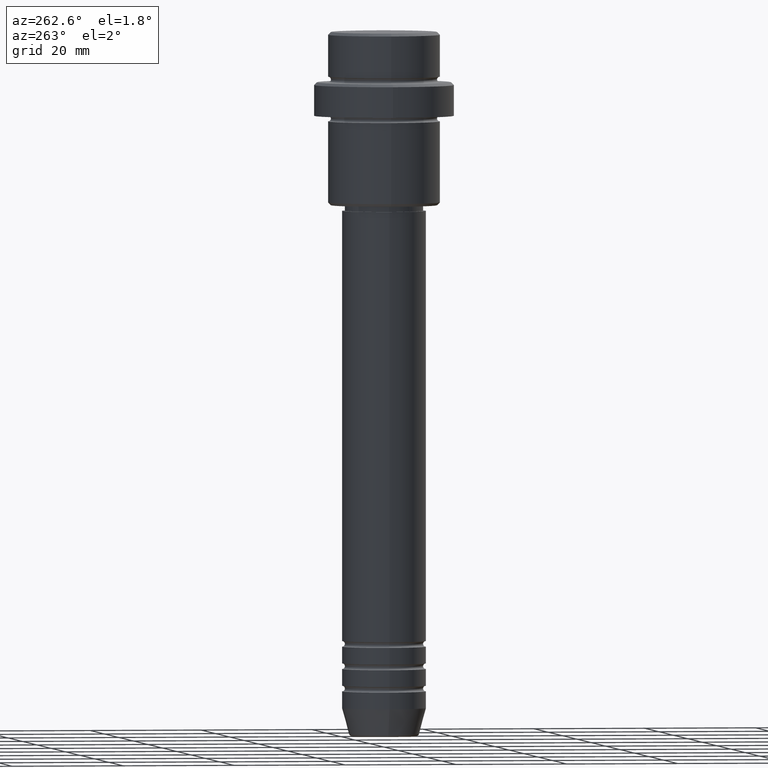
[diagram: clean part render]
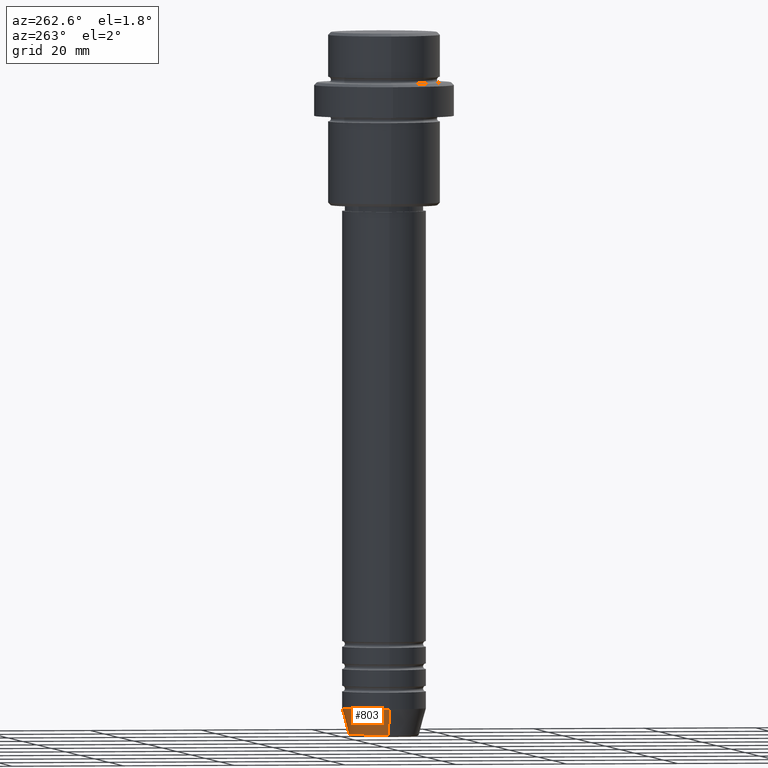
[diagram: same view with one face highlighted and labeled with its STEP entity id]
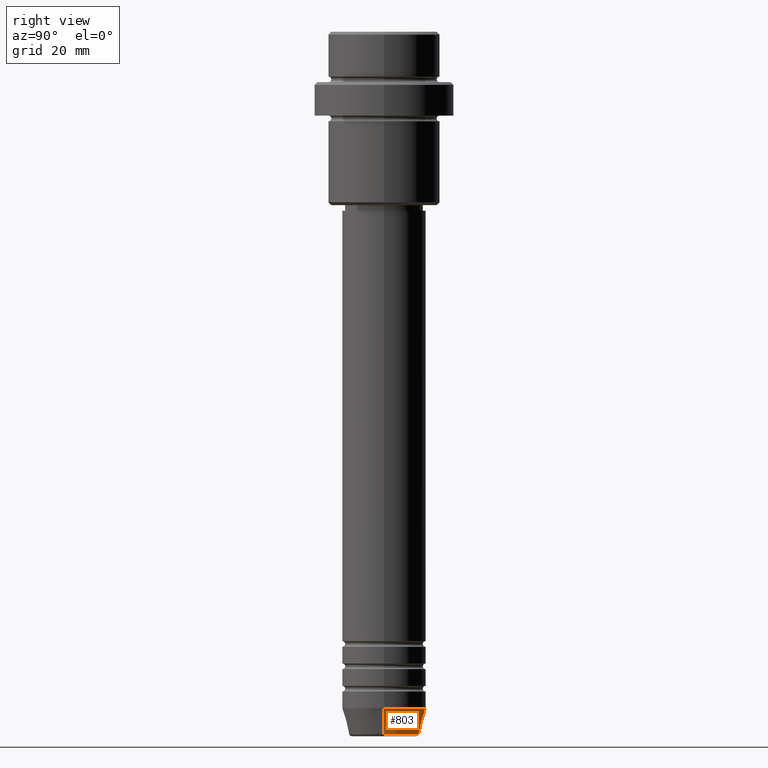
[diagram: same view with one face highlighted and labeled with its STEP entity id]
A machine part, auxiliary view. The second image highlights one B-rep face of the part: STEP entity #803.
A second angle (right view) of the same face is appended — the face is thin or edge-on in the first view.
In plain terms, the highlighted conical surface has half-angle 15 deg.
Its self-contained STEP definition (entity closure, byte-faithful):
#60 = AXIS2_PLACEMENT_3D ( 'NONE', #749, #570, #210 ) ;
#87 = CARTESIAN_POINT ( 'NONE',  ( 7.500000000000000000, 0.000000000000000000, -121.0000000000000000 ) ) ;
#131 = CONICAL_SURFACE ( 'NONE', #60, 7.500000000000000000, 0.2617993877991500740 ) ;
#194 = VERTEX_POINT ( 'NONE', #808 ) ;
#210 = DIRECTION ( 'NONE',  ( 1.000000000000000000, 0.000000000000000000, 0.000000000000000000 ) ) ;
#211 = DIRECTION ( 'NONE',  ( 0.2588190451025213501, 0.000000000000000000, 0.9659258262890680902 ) ) ;
#284 = DIRECTION ( 'NONE',  ( -0.000000000000000000, -0.000000000000000000, 1.000000000000000000 ) ) ;
#288 = CIRCLE ( 'NONE', #668, 7.500000000000000000 ) ;
#328 = LINE ( 'NONE', #87, #863 ) ;
#332 = LINE ( 'NONE', #920, #1366 ) ;
#337 = VERTEX_POINT ( 'NONE', #710 ) ;
#387 = EDGE_CURVE ( 'NONE', #1039, #337, #328, .T. ) ;
#422 = CARTESIAN_POINT ( 'NONE',  ( 0.000000000000000000, 0.000000000000000000, -121.0000000000000000 ) ) ;
#430 = ORIENTED_EDGE ( 'NONE', *, *, #1318, .T. ) ;
#480 = DIRECTION ( 'NONE',  ( 1.000000000000000000, 0.000000000000000000, 0.000000000000000000 ) ) ;
#508 = DIRECTION ( 'NONE',  ( 1.000000000000000000, 0.000000000000000000, 0.000000000000000000 ) ) ;
#570 = DIRECTION ( 'NONE',  ( -0.000000000000000000, -0.000000000000000000, 1.000000000000000000 ) ) ;
#604 = CARTESIAN_POINT ( 'NONE',  ( 0.000000000000000000, 0.000000000000000000, -125.6294095225512564 ) ) ;
#660 = DIRECTION ( 'NONE',  ( -0.2588190451025213501, 3.169619151431772337E-17, 0.9659258262890680902 ) ) ;
#668 = AXIS2_PLACEMENT_3D ( 'NONE', #422, #284, #508 ) ;
#691 = CARTESIAN_POINT ( 'NONE',  ( 6.259553456999438659, 0.000000000000000000, -125.6294095225512564 ) ) ;
#710 = CARTESIAN_POINT ( 'NONE',  ( 7.500000000000000000, 0.000000000000000000, -121.0000000000000000 ) ) ;
#723 = CIRCLE ( 'NONE', #1083, 6.259553456999438659 ) ;
#742 = ORIENTED_EDGE ( 'NONE', *, *, #1169, .T. ) ;
#749 = CARTESIAN_POINT ( 'NONE',  ( 0.000000000000000000, 0.000000000000000000, -121.0000000000000000 ) ) ;
#803 = ADVANCED_FACE ( 'NONE', ( #867 ), #131, .T. ) ;
#808 = CARTESIAN_POINT ( 'NONE',  ( -7.500000000000000000, 9.184850993605147944E-16, -121.0000000000000000 ) ) ;
#863 = VECTOR ( 'NONE', #211, 1000.000000000000000 ) ;
#867 = FACE_OUTER_BOUND ( 'NONE', #1274, .T. ) ;
#875 = EDGE_CURVE ( 'NONE', #337, #194, #288, .T. ) ;
#920 = CARTESIAN_POINT ( 'NONE',  ( -7.500000000000000000, 9.184850993605147944E-16, -121.0000000000000000 ) ) ;
#926 = ORIENTED_EDGE ( 'NONE', *, *, #387, .F. ) ;
#954 = ORIENTED_EDGE ( 'NONE', *, *, #875, .F. ) ;
#1036 = DIRECTION ( 'NONE',  ( -0.000000000000000000, -0.000000000000000000, 1.000000000000000000 ) ) ;
#1039 = VERTEX_POINT ( 'NONE', #691 ) ;
#1083 = AXIS2_PLACEMENT_3D ( 'NONE', #604, #1036, #480 ) ;
#1142 = CARTESIAN_POINT ( 'NONE',  ( -6.259553456999438659, 8.425296549405629486E-16, -125.6294095225512564 ) ) ;
#1169 = EDGE_CURVE ( 'NONE', #1210, #194, #332, .T. ) ;
#1210 = VERTEX_POINT ( 'NONE', #1142 ) ;
#1274 = EDGE_LOOP ( 'NONE', ( #430, #742, #954, #926 ) ) ;
#1318 = EDGE_CURVE ( 'NONE', #1039, #1210, #723, .T. ) ;
#1366 = VECTOR ( 'NONE', #660, 1000.000000000000000 ) ;